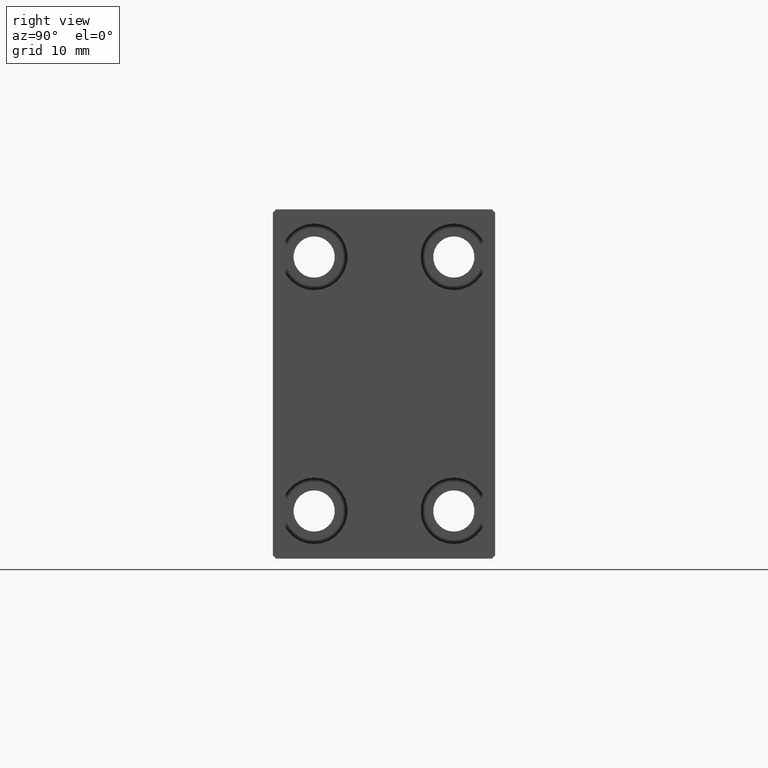
[diagram: clean part render]
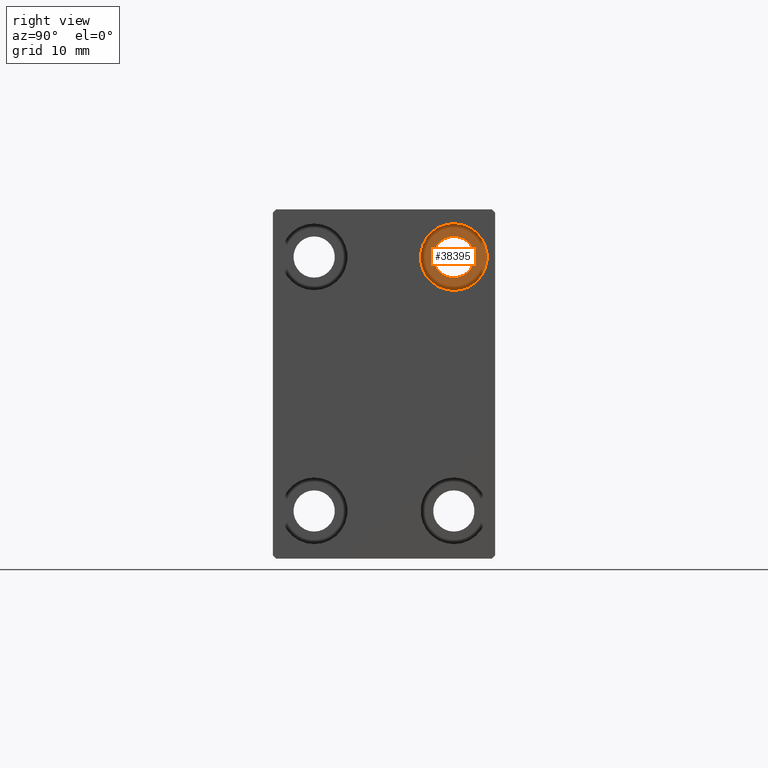
[diagram: same view with one face highlighted and labeled with its STEP entity id]
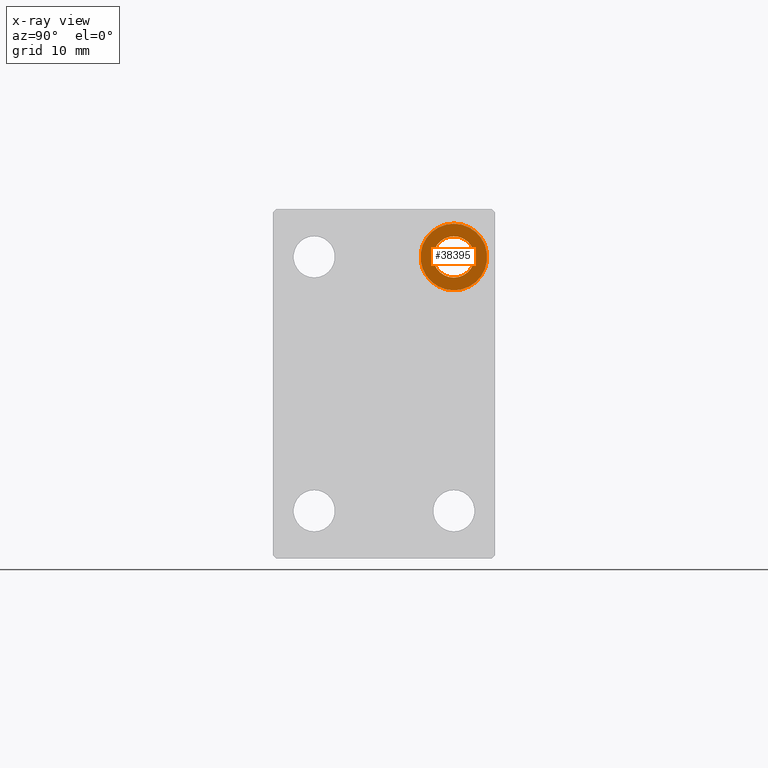
[diagram: x-ray of the same camera — body ghosted, the highlighted face saturated]
A machine part, right view. The second image highlights one B-rep face of the part: STEP entity #38395.
The next image is the same camera in x-ray: the body ghosted, the highlighted face saturated — about 0% of this face is hidden behind the body in this view.
In plain terms, the highlighted planar face has unit normal (1, 0, 0).
Its self-contained STEP definition (entity closure, byte-faithful):
#192 = CARTESIAN_POINT ( 'NONE',  ( 78.99999999999998579, 11.00000000000000355, 23.25000000000000000 ) ) ;
#299 = DIRECTION ( 'NONE',  ( 0.000000000000000000, 0.000000000000000000, 1.000000000000000000 ) ) ;
#3474 = CIRCLE ( 'NONE', #8447, 5.250000000000000888 ) ;
#4211 = CARTESIAN_POINT ( 'NONE',  ( 78.99999999999998579, 11.00000000000000355, 20.00000000000000000 ) ) ;
#4410 = DIRECTION ( 'NONE',  ( -1.000000000000000000, -0.000000000000000000, -0.000000000000000000 ) ) ;
#7024 = VERTEX_POINT ( 'NONE', #192 ) ;
#7082 = CARTESIAN_POINT ( 'NONE',  ( 78.99999999999998579, 11.00000000000000355, 20.00000000000000000 ) ) ;
#8090 = VERTEX_POINT ( 'NONE', #43194 ) ;
#8447 = AXIS2_PLACEMENT_3D ( 'NONE', #24216, #37731, #299 ) ;
#10974 = FACE_BOUND ( 'NONE', #40407, .T. ) ;
#11191 = FACE_OUTER_BOUND ( 'NONE', #33713, .T. ) ;
#11277 = DIRECTION ( 'NONE',  ( 0.000000000000000000, 0.000000000000000000, -1.000000000000000000 ) ) ;
#11558 = AXIS2_PLACEMENT_3D ( 'NONE', #4211, #34992, #27914 ) ;
#11654 = CIRCLE ( 'NONE', #29334, 5.250000000000000888 ) ;
#12838 = AXIS2_PLACEMENT_3D ( 'NONE', #20715, #34215, #31757 ) ;
#14247 = EDGE_CURVE ( 'NONE', #32300, #22137, #11654, .T. ) ;
#18889 = ORIENTED_EDGE ( 'NONE', *, *, #14247, .F. ) ;
#20282 = CARTESIAN_POINT ( 'NONE',  ( 78.99999999999998579, 11.00000000000000355, 25.25000000000000000 ) ) ;
#20715 = CARTESIAN_POINT ( 'NONE',  ( 78.99999999999998579, 0.000000000000000000, 0.000000000000000000 ) ) ;
#22137 = VERTEX_POINT ( 'NONE', #20282 ) ;
#23285 = ORIENTED_EDGE ( 'NONE', *, *, #34542, .T. ) ;
#24216 = CARTESIAN_POINT ( 'NONE',  ( 78.99999999999998579, 11.00000000000000355, 20.00000000000000000 ) ) ;
#24793 = DIRECTION ( 'NONE',  ( 0.000000000000000000, 0.000000000000000000, 1.000000000000000000 ) ) ;
#27130 = CIRCLE ( 'NONE', #11558, 3.249999999999999556 ) ;
#27574 = PLANE ( 'NONE',  #12838 ) ;
#27914 = DIRECTION ( 'NONE',  ( 0.000000000000000000, 0.000000000000000000, -1.000000000000000000 ) ) ;
#28091 = DIRECTION ( 'NONE',  ( -1.000000000000000000, -0.000000000000000000, -0.000000000000000000 ) ) ;
#28187 = EDGE_CURVE ( 'NONE', #22137, #32300, #3474, .T. ) ;
#29334 = AXIS2_PLACEMENT_3D ( 'NONE', #7082, #4410, #24793 ) ;
#30396 = AXIS2_PLACEMENT_3D ( 'NONE', #38503, #28091, #11277 ) ;
#31757 = DIRECTION ( 'NONE',  ( 0.000000000000000000, 0.000000000000000000, 1.000000000000000000 ) ) ;
#32300 = VERTEX_POINT ( 'NONE', #36342 ) ;
#33713 = EDGE_LOOP ( 'NONE', ( #18889, #43517 ) ) ;
#34215 = DIRECTION ( 'NONE',  ( 1.000000000000000000, 0.000000000000000000, -0.000000000000000000 ) ) ;
#34542 = EDGE_CURVE ( 'NONE', #8090, #7024, #37494, .T. ) ;
#34992 = DIRECTION ( 'NONE',  ( -1.000000000000000000, -0.000000000000000000, -0.000000000000000000 ) ) ;
#36342 = CARTESIAN_POINT ( 'NONE',  ( 78.99999999999998579, 11.00000000000000355, 14.75000000000000000 ) ) ;
#37494 = CIRCLE ( 'NONE', #30396, 3.249999999999999556 ) ;
#37731 = DIRECTION ( 'NONE',  ( -1.000000000000000000, -0.000000000000000000, -0.000000000000000000 ) ) ;
#38395 = ADVANCED_FACE ( 'NONE', ( #11191, #10974 ), #27574, .T. ) ;
#38503 = CARTESIAN_POINT ( 'NONE',  ( 78.99999999999998579, 11.00000000000000355, 20.00000000000000000 ) ) ;
#40407 = EDGE_LOOP ( 'NONE', ( #43835, #23285 ) ) ;
#40700 = EDGE_CURVE ( 'NONE', #7024, #8090, #27130, .T. ) ;
#43194 = CARTESIAN_POINT ( 'NONE',  ( 78.99999999999998579, 11.00000000000000355, 16.75000000000000000 ) ) ;
#43517 = ORIENTED_EDGE ( 'NONE', *, *, #28187, .F. ) ;
#43835 = ORIENTED_EDGE ( 'NONE', *, *, #40700, .T. ) ;